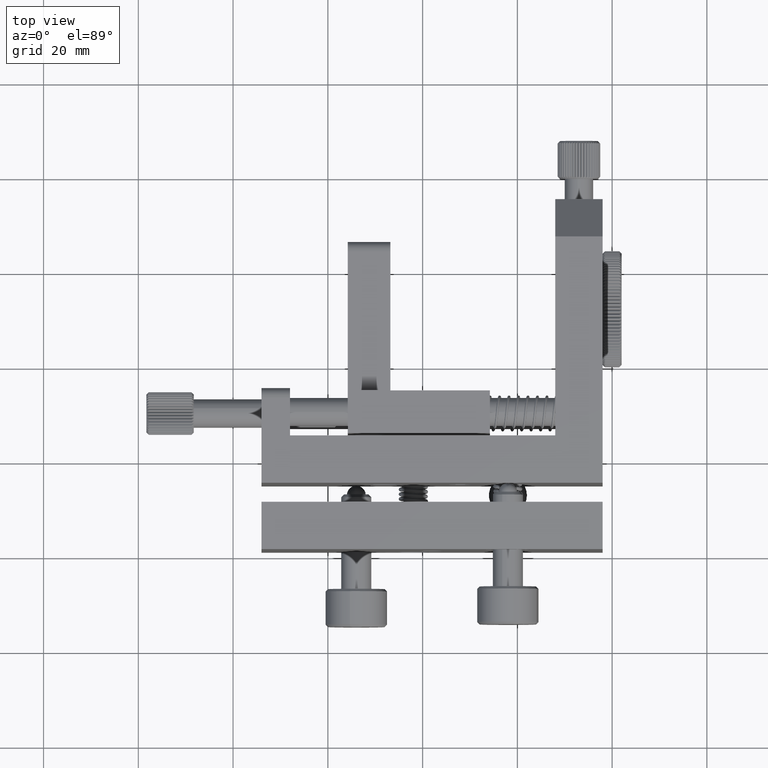
[diagram: clean part render]
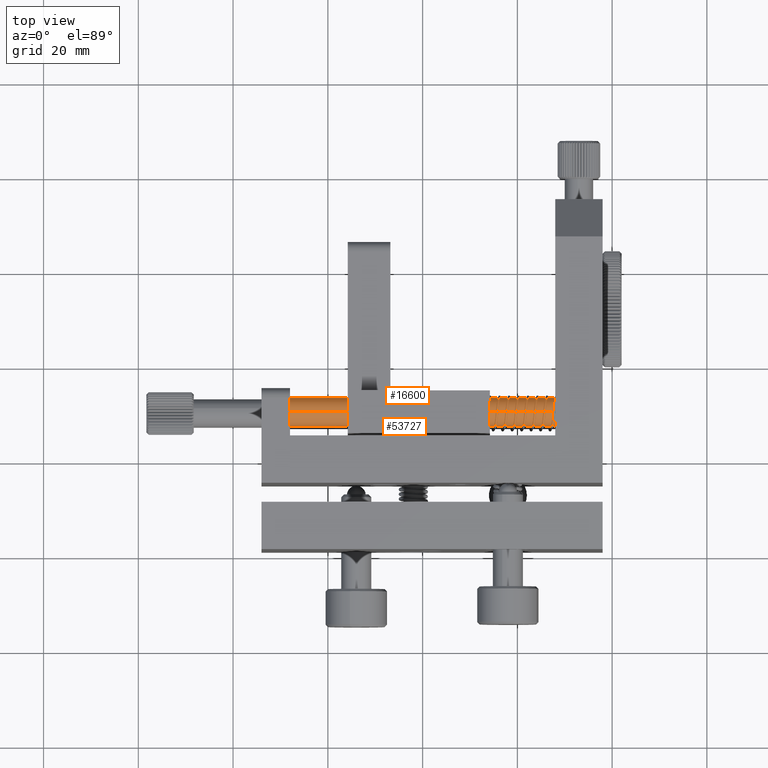
[diagram: same view with one multi-face feature highlighted, each face labeled with its STEP entity id]
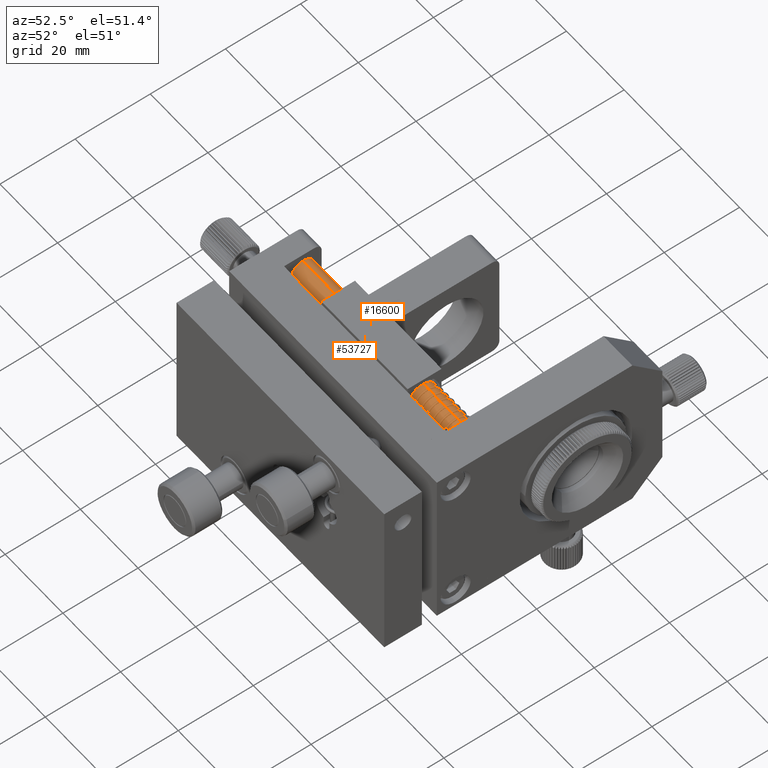
[diagram: same view with one multi-face feature highlighted, each face labeled with its STEP entity id]
A machine part, top view. The highlighted faces form ONE feature: a constant-radius fillet chain: 2 tangent blend faces with common blend radius 3 mm. The faces share edges in the B-rep.
A second angle (auxiliary view) of the same feature is appended — it is thin or edge-on in the first view.
Their STEP definitions:
[1] entity #53727 (Cylinder):
#81 = ORIENTED_EDGE ( 'NONE', *, *, #54671, .F. ) ;
#2548 = CARTESIAN_POINT ( 'NONE',  ( -34.00000000000002100, 9.999999999999991100, 14.50000000000002000 ) ) ;
#3209 = EDGE_LOOP ( 'NONE', ( #81, #25475, #62440, #34416 ) ) ;
#5550 = VERTEX_POINT ( 'NONE', #39949 ) ;
#6563 = CIRCLE ( 'NONE', #27029, 2.999999999999999100 ) ;
#7905 = CIRCLE ( 'NONE', #34981, 2.999999999999999100 ) ;
#12872 = DIRECTION ( 'NONE',  ( 0.0000000000000000000, 0.0000000000000000000, -1.000000000000000000 ) ) ;
#17518 = CARTESIAN_POINT ( 'NONE',  ( -34.00000000000002100, 9.999999999999991100, 17.50000000000001800 ) ) ;
#19595 = LINE ( 'NONE', #37153, #53821 ) ;
#20263 = CARTESIAN_POINT ( 'NONE',  ( 37.99999999999997200, 9.999999999999991100, 17.50000000000000400 ) ) ;
#22695 = VERTEX_POINT ( 'NONE', #29349 ) ;
#23105 = CARTESIAN_POINT ( 'NONE',  ( -34.00000000000002100, 9.999999999999991100, 17.50000000000001800 ) ) ;
#25475 = ORIENTED_EDGE ( 'NONE', *, *, #43151, .F. ) ;
#27029 = AXIS2_PLACEMENT_3D ( 'NONE', #23105, #63409, #37699 ) ;
#29349 = CARTESIAN_POINT ( 'NONE',  ( 37.99999999999997200, 9.999999999999991100, 20.50000000000000400 ) ) ;
#30009 = DIRECTION ( 'NONE',  ( 0.0000000000000000000, 0.0000000000000000000, 1.000000000000000000 ) ) ;
#34416 = ORIENTED_EDGE ( 'NONE', *, *, #35694, .T. ) ;
#34446 = VECTOR ( 'NONE', #38481, 1000.000000000000000 ) ;
#34981 = AXIS2_PLACEMENT_3D ( 'NONE', #20263, #59909, #30009 ) ;
#35226 = CYLINDRICAL_SURFACE ( 'NONE', #63400, 2.999999999999999100 ) ;
#35694 = EDGE_CURVE ( 'NONE', #62769, #22695, #7905, .T. ) ;
#36888 = CARTESIAN_POINT ( 'NONE',  ( 37.99999999999997200, 9.999999999999991100, 14.50000000000000500 ) ) ;
#37153 = CARTESIAN_POINT ( 'NONE',  ( -34.00000000000002100, 9.999999999999991100, 20.50000000000001800 ) ) ;
#37285 = DIRECTION ( 'NONE',  ( 1.000000000000000000, 1.241154853049550300E-032, -1.995594565367624600E-016 ) ) ;
#37699 = DIRECTION ( 'NONE',  ( 0.0000000000000000000, 0.0000000000000000000, 1.000000000000000000 ) ) ;
#38481 = DIRECTION ( 'NONE',  ( 1.000000000000000000, 1.241154853049550300E-032, -1.995594565367624600E-016 ) ) ;
#39949 = CARTESIAN_POINT ( 'NONE',  ( -34.00000000000002100, 9.999999999999991100, 14.50000000000002000 ) ) ;
#41766 = DIRECTION ( 'NONE',  ( 1.000000000000000000, 1.241154853049550300E-032, -1.995594565367624600E-016 ) ) ;
#43071 = LINE ( 'NONE', #2548, #34446 ) ;
#43151 = EDGE_CURVE ( 'NONE', #5550, #55345, #6563, .T. ) ;
#44080 = CARTESIAN_POINT ( 'NONE',  ( -34.00000000000002100, 9.999999999999991100, 20.50000000000001800 ) ) ;
#50083 = FACE_OUTER_BOUND ( 'NONE', #3209, .T. ) ;
#53727 = ADVANCED_FACE ( 'NONE', ( #50083 ), #35226, .T. ) ;
#53821 = VECTOR ( 'NONE', #41766, 1000.000000000000000 ) ;
#54671 = EDGE_CURVE ( 'NONE', #55345, #22695, #19595, .T. ) ;
#55345 = VERTEX_POINT ( 'NONE', #44080 ) ;
#59909 = DIRECTION ( 'NONE',  ( -1.000000000000000000, -1.241154853049550300E-032, 1.995594565367624600E-016 ) ) ;
#62432 = EDGE_CURVE ( 'NONE', #5550, #62769, #43071, .T. ) ;
#62440 = ORIENTED_EDGE ( 'NONE', *, *, #62432, .T. ) ;
#62769 = VERTEX_POINT ( 'NONE', #36888 ) ;
#63400 = AXIS2_PLACEMENT_3D ( 'NONE', #17518, #37285, #12872 ) ;
#63409 = DIRECTION ( 'NONE',  ( -1.000000000000000000, -1.241154853049550300E-032, 1.995594565367624600E-016 ) ) ;
[2] entity #16600 (Cylinder):
#1720 = DIRECTION ( 'NONE',  ( -1.000000000000000000, -1.241154853049550300E-032, 1.995594565367624600E-016 ) ) ;
#2146 = DIRECTION ( 'NONE',  ( 0.0000000000000000000, 0.0000000000000000000, 1.000000000000000000 ) ) ;
#2548 = CARTESIAN_POINT ( 'NONE',  ( -34.00000000000002100, 9.999999999999991100, 14.50000000000002000 ) ) ;
#5550 = VERTEX_POINT ( 'NONE', #39949 ) ;
#6420 = EDGE_CURVE ( 'NONE', #22695, #62769, #40612, .T. ) ;
#11891 = CARTESIAN_POINT ( 'NONE',  ( 37.99999999999997200, 9.999999999999991100, 17.50000000000000400 ) ) ;
#16600 = ADVANCED_FACE ( 'NONE', ( #56997 ), #30457, .T. ) ;
#19595 = LINE ( 'NONE', #37153, #53821 ) ;
#21499 = ORIENTED_EDGE ( 'NONE', *, *, #62432, .F. ) ;
#22695 = VERTEX_POINT ( 'NONE', #29349 ) ;
#23042 = ORIENTED_EDGE ( 'NONE', *, *, #6420, .T. ) ;
#23275 = DIRECTION ( 'NONE',  ( 0.0000000000000000000, 0.0000000000000000000, 1.000000000000000000 ) ) ;
#29349 = CARTESIAN_POINT ( 'NONE',  ( 37.99999999999997200, 9.999999999999991100, 20.50000000000000400 ) ) ;
#29861 = ORIENTED_EDGE ( 'NONE', *, *, #54671, .T. ) ;
#30457 = CYLINDRICAL_SURFACE ( 'NONE', #37386, 2.999999999999999100 ) ;
#31595 = AXIS2_PLACEMENT_3D ( 'NONE', #43763, #43118, #23275 ) ;
#31962 = AXIS2_PLACEMENT_3D ( 'NONE', #11891, #1720, #2146 ) ;
#34446 = VECTOR ( 'NONE', #38481, 1000.000000000000000 ) ;
#36888 = CARTESIAN_POINT ( 'NONE',  ( 37.99999999999997200, 9.999999999999991100, 14.50000000000000500 ) ) ;
#37153 = CARTESIAN_POINT ( 'NONE',  ( -34.00000000000002100, 9.999999999999991100, 20.50000000000001800 ) ) ;
#37386 = AXIS2_PLACEMENT_3D ( 'NONE', #60227, #44960, #40141 ) ;
#38481 = DIRECTION ( 'NONE',  ( 1.000000000000000000, 1.241154853049550300E-032, -1.995594565367624600E-016 ) ) ;
#39290 = ORIENTED_EDGE ( 'NONE', *, *, #61840, .F. ) ;
#39949 = CARTESIAN_POINT ( 'NONE',  ( -34.00000000000002100, 9.999999999999991100, 14.50000000000002000 ) ) ;
#40141 = DIRECTION ( 'NONE',  ( 0.0000000000000000000, 0.0000000000000000000, -1.000000000000000000 ) ) ;
#40612 = CIRCLE ( 'NONE', #31962, 2.999999999999999100 ) ;
#41766 = DIRECTION ( 'NONE',  ( 1.000000000000000000, 1.241154853049550300E-032, -1.995594565367624600E-016 ) ) ;
#43071 = LINE ( 'NONE', #2548, #34446 ) ;
#43118 = DIRECTION ( 'NONE',  ( -1.000000000000000000, -1.241154853049550300E-032, 1.995594565367624600E-016 ) ) ;
#43763 = CARTESIAN_POINT ( 'NONE',  ( -34.00000000000002100, 9.999999999999991100, 17.50000000000001800 ) ) ;
#44080 = CARTESIAN_POINT ( 'NONE',  ( -34.00000000000002100, 9.999999999999991100, 20.50000000000001800 ) ) ;
#44960 = DIRECTION ( 'NONE',  ( 1.000000000000000000, 1.241154853049550300E-032, -1.995594565367624600E-016 ) ) ;
#50187 = CIRCLE ( 'NONE', #31595, 2.999999999999999100 ) ;
#53821 = VECTOR ( 'NONE', #41766, 1000.000000000000000 ) ;
#54671 = EDGE_CURVE ( 'NONE', #55345, #22695, #19595, .T. ) ;
#55345 = VERTEX_POINT ( 'NONE', #44080 ) ;
#56997 = FACE_OUTER_BOUND ( 'NONE', #61782, .T. ) ;
#60227 = CARTESIAN_POINT ( 'NONE',  ( -34.00000000000002100, 9.999999999999991100, 17.50000000000001800 ) ) ;
#61782 = EDGE_LOOP ( 'NONE', ( #39290, #29861, #23042, #21499 ) ) ;
#61840 = EDGE_CURVE ( 'NONE', #55345, #5550, #50187, .T. ) ;
#62432 = EDGE_CURVE ( 'NONE', #5550, #62769, #43071, .T. ) ;
#62769 = VERTEX_POINT ( 'NONE', #36888 ) ;